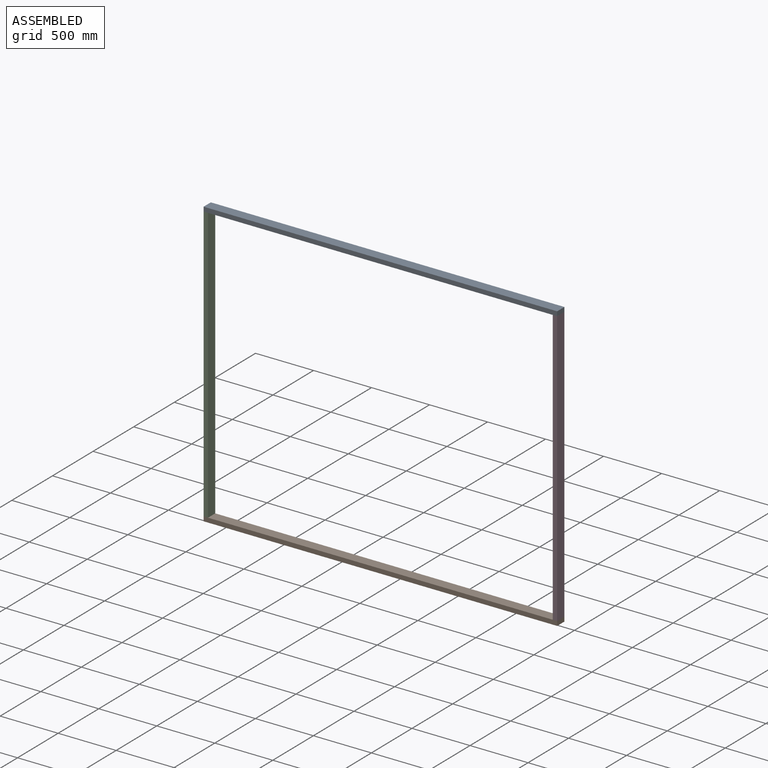
[diagram: assembled view]
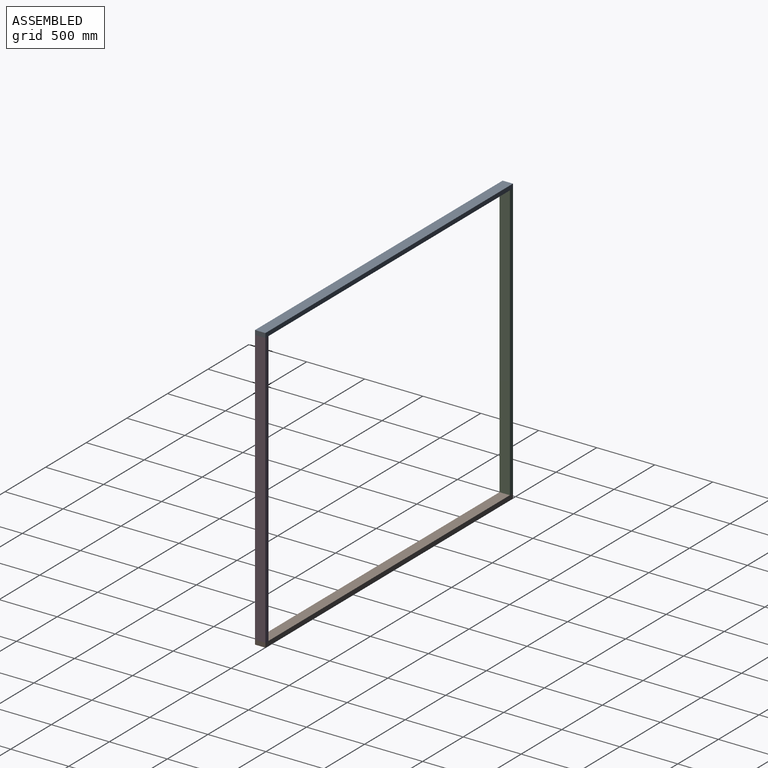
[diagram: assembled view, second angle]
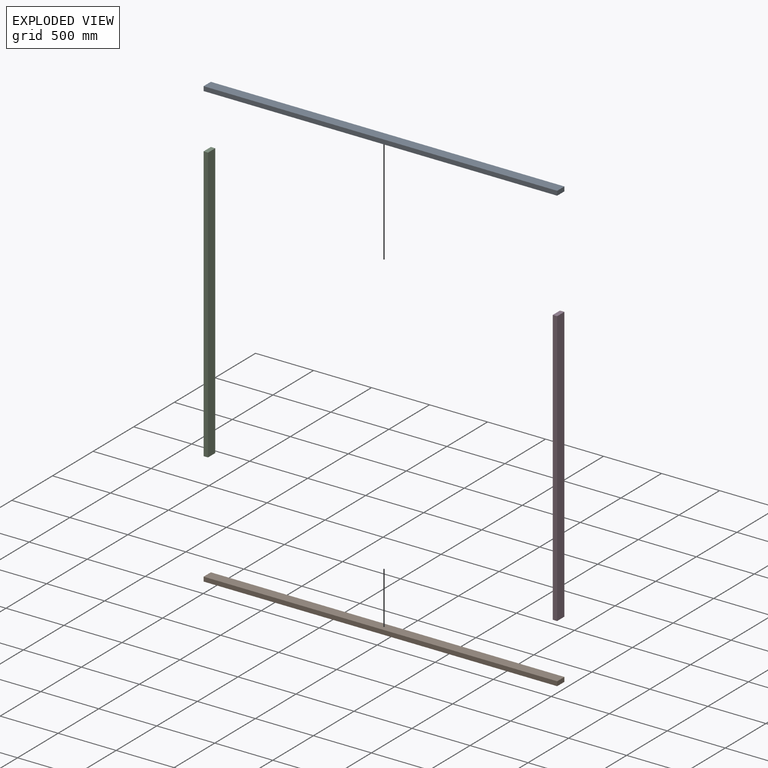
[diagram: exploded view]
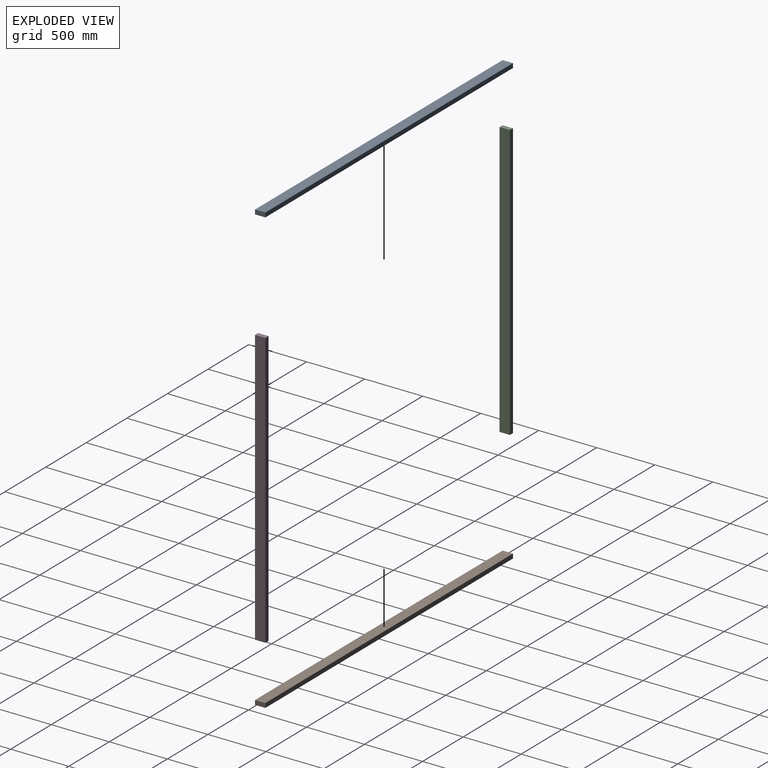
[diagram: exploded view, second angle]
ASSEMBLY  parts=4 mates=3
PART A: 6 faces, bbox 38.1x3048x88.9 mm
  f0: plane 3048x88.9mm, normal (-1,0,0), area 270967.2mm2, adj f1,f3,f4,f5
  f1: plane 3048x38.1mm, normal (0,0,-1), area 116128.8mm2, adj f0,f2,f4,f5
  f2: plane 3048x88.9mm, normal (1,0,0), area 270967.2mm2, adj f1,f3,f4,f5
  f3: plane 3048x38.1mm, normal (0,0,1), area 116128.8mm2, adj f0,f2,f4,f5
  f4: plane 88.9x38.1mm, normal (0,1,0), area 3387.1mm2, adj f0,f1,f2,f3
  f5: plane 88.9x38.1mm, normal (0,-1,0), area 3387.1mm2, adj f0,f1,f2,f3
PART B: same geometry as A
PART C: 6 faces, bbox 38.1x2374.9x88.9 mm
  f0: plane 2374.9x38.1mm, normal (0,0,-1), area 90483.7mm2, adj f1,f3,f4,f5
  f1: plane 2374.9x88.9mm, normal (1,0,0), area 211128.6mm2, adj f0,f2,f4,f5
  f2: plane 2374.9x38.1mm, normal (0,0,1), area 90483.7mm2, adj f1,f3,f4,f5
  f3: plane 2374.9x88.9mm, normal (-1,0,0), area 211128.6mm2, adj f0,f2,f4,f5
  f4: plane 88.9x38.1mm, normal (0,1,0), area 3387.1mm2, adj f0,f1,f2,f3
  f5: plane 88.9x38.1mm, normal (0,-1,0), area 3387.1mm2, adj f0,f1,f2,f3
PART D: same geometry as C
PLACE A rot(axis=(-0.58,-0.58,-0.58),120deg) t=(-1540.03,-2438,2466.77)mm
PLACE B rot(axis=(-0.58,-0.58,-0.58),120deg) t=(-1540.03,-2438,53.77)mm
PLACE C rot(axis=(1,0,0),90deg) t=(-1463.83,-2349.1,168.07)mm
PLACE D rot(axis=(1,0,0),90deg) t=(1546.07,-2349.1,168.07)mm
MATE fastened A.f0 <-> D.f4  axis (0,0,1) through (1507.97,-2438,2542.97)mm
MATE fastened C.f5 <-> B.f2  axis (0,0,-1) through (-1540.03,-2438,168.07)mm
MATE fastened D.f5 <-> B.f2  axis (0,0,-1) through (1507.97,-2438,168.07)mm
